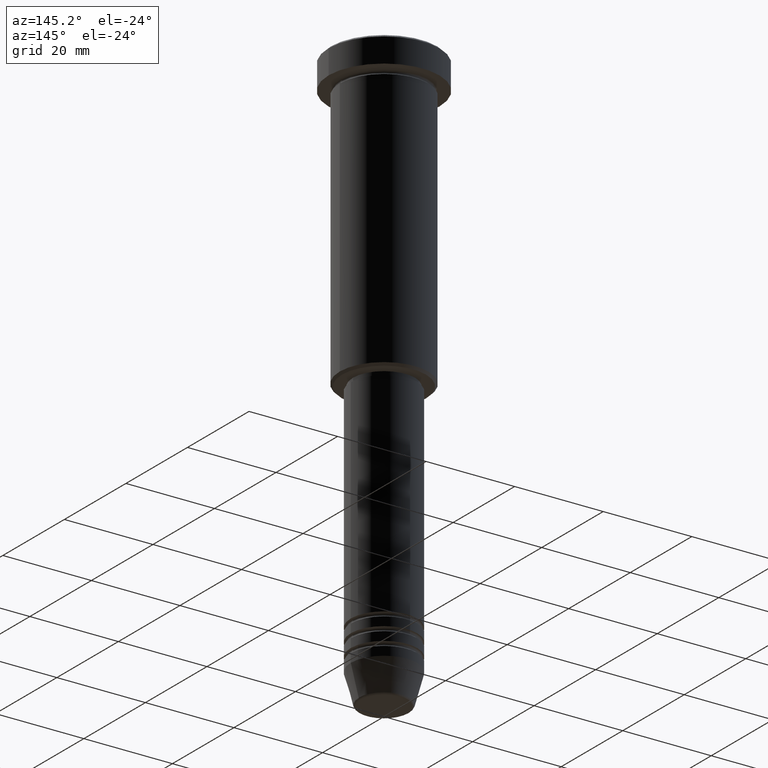
[diagram: clean part render]
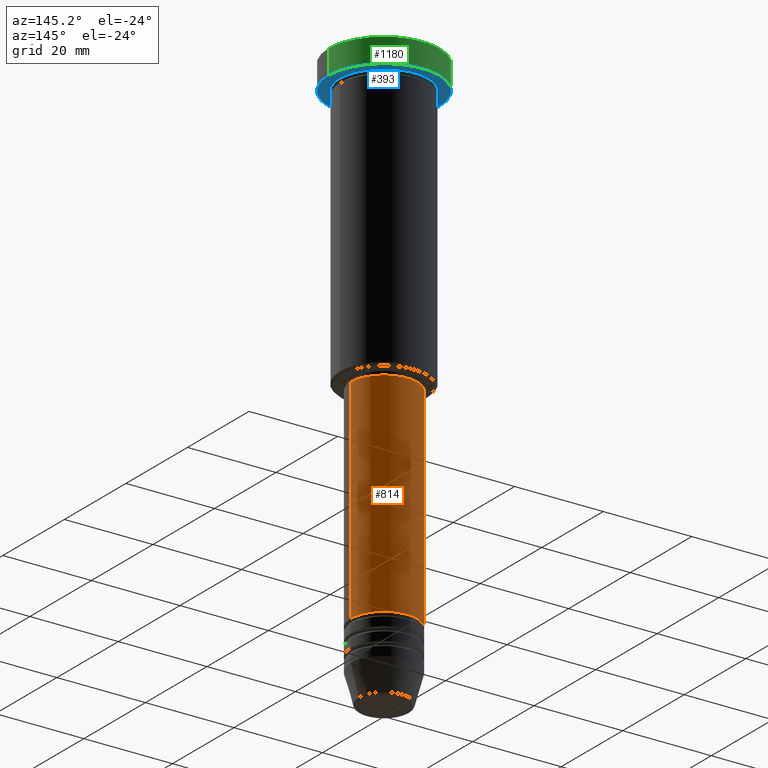
[diagram: same view with three faces highlighted in distinct colors, each labeled with its STEP entity id]
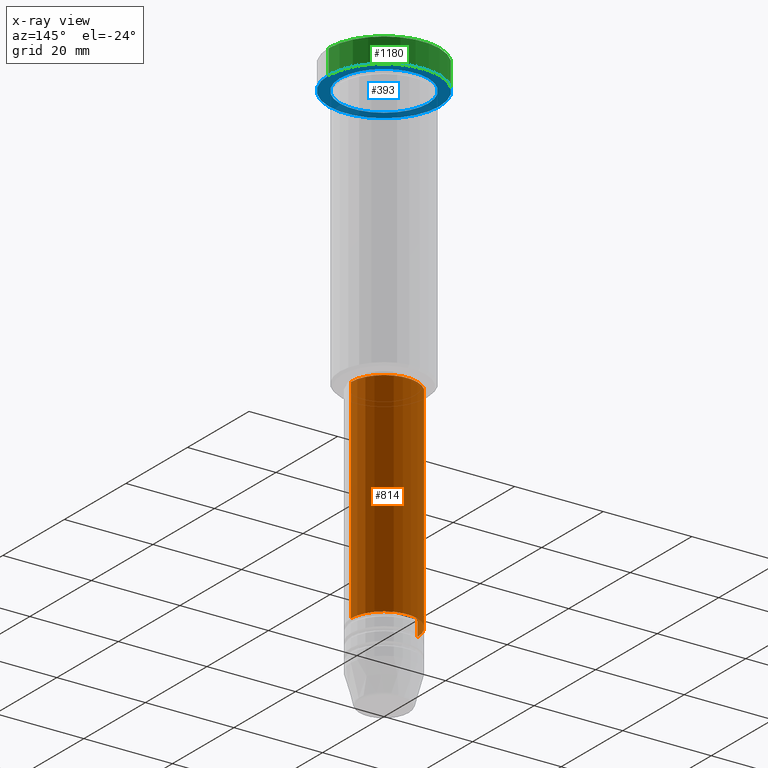
[diagram: x-ray of the same camera — body ghosted, the three highlighted faces saturated]
A machine part, auxiliary view with three faces highlighted in distinct colors.
The next image is the same camera in x-ray (body ghosted, the three faces saturated) — at least one of them is partly hidden behind the body in this view.
Their STEP definitions:

[orange] entity #814 — the highlighted cylindrical surface (partial cylindrical patch) has radius 7.5 mm, axis along (-0, -0, 1).
#116 = VECTOR ( 'NONE', #376, 1000.000000000000000 ) ;
#133 = CYLINDRICAL_SURFACE ( 'NONE', #668, 7.500000000000000000 ) ;
#141 = DIRECTION ( 'NONE',  ( -0.000000000000000000, -0.000000000000000000, 1.000000000000000000 ) ) ;
#175 = AXIS2_PLACEMENT_3D ( 'NONE', #1156, #344, #855 ) ;
#198 = VERTEX_POINT ( 'NONE', #401 ) ;
#224 = CARTESIAN_POINT ( 'NONE',  ( -7.500000000000000000, 9.184850993605147944E-16, 0.000000000000000000 ) ) ;
#236 = EDGE_CURVE ( 'NONE', #1010, #967, #867, .T. ) ;
#296 = CARTESIAN_POINT ( 'NONE',  ( 0.000000000000000000, 0.000000000000000000, 0.000000000000000000 ) ) ;
#310 = FACE_OUTER_BOUND ( 'NONE', #574, .T. ) ;
#316 = DIRECTION ( 'NONE',  ( -0.000000000000000000, -0.000000000000000000, 1.000000000000000000 ) ) ;
#333 = ORIENTED_EDGE ( 'NONE', *, *, #721, .F. ) ;
#344 = DIRECTION ( 'NONE',  ( -0.000000000000000000, -0.000000000000000000, 1.000000000000000000 ) ) ;
#359 = CARTESIAN_POINT ( 'NONE',  ( 7.500000000000000000, 0.000000000000000000, 0.000000000000000000 ) ) ;
#376 = DIRECTION ( 'NONE',  ( -0.000000000000000000, -0.000000000000000000, 1.000000000000000000 ) ) ;
#401 = CARTESIAN_POINT ( 'NONE',  ( 7.500000000000000000, 0.000000000000000000, -67.00000000000000000 ) ) ;
#435 = ORIENTED_EDGE ( 'NONE', *, *, #1014, .F. ) ;
#471 = AXIS2_PLACEMENT_3D ( 'NONE', #678, #571, #754 ) ;
#499 = LINE ( 'NONE', #224, #859 ) ;
#571 = DIRECTION ( 'NONE',  ( -0.000000000000000000, -0.000000000000000000, 1.000000000000000000 ) ) ;
#574 = EDGE_LOOP ( 'NONE', ( #799, #922, #333, #435 ) ) ;
#594 = VERTEX_POINT ( 'NONE', #1083 ) ;
#668 = AXIS2_PLACEMENT_3D ( 'NONE', #296, #316, #841 ) ;
#677 = CIRCLE ( 'NONE', #471, 7.500000000000000000 ) ;
#678 = CARTESIAN_POINT ( 'NONE',  ( 0.000000000000000000, 0.000000000000000000, -67.00000000000000000 ) ) ;
#721 = EDGE_CURVE ( 'NONE', #198, #594, #677, .T. ) ;
#731 = CARTESIAN_POINT ( 'NONE',  ( -7.500000000000000000, 9.184850993605147944E-16, -114.9999999999999574 ) ) ;
#754 = DIRECTION ( 'NONE',  ( 1.000000000000000000, 0.000000000000000000, 0.000000000000000000 ) ) ;
#799 = ORIENTED_EDGE ( 'NONE', *, *, #236, .T. ) ;
#814 = ADVANCED_FACE ( 'NONE', ( #310 ), #133, .T. ) ;
#838 = CARTESIAN_POINT ( 'NONE',  ( 7.500000000000000000, 0.000000000000000000, -114.9999999999999574 ) ) ;
#841 = DIRECTION ( 'NONE',  ( 1.000000000000000000, 0.000000000000000000, 0.000000000000000000 ) ) ;
#855 = DIRECTION ( 'NONE',  ( 1.000000000000000000, 0.000000000000000000, 0.000000000000000000 ) ) ;
#859 = VECTOR ( 'NONE', #141, 1000.000000000000000 ) ;
#867 = CIRCLE ( 'NONE', #175, 7.500000000000000000 ) ;
#922 = ORIENTED_EDGE ( 'NONE', *, *, #1175, .T. ) ;
#933 = LINE ( 'NONE', #359, #116 ) ;
#967 = VERTEX_POINT ( 'NONE', #731 ) ;
#1010 = VERTEX_POINT ( 'NONE', #838 ) ;
#1014 = EDGE_CURVE ( 'NONE', #1010, #198, #933, .T. ) ;
#1083 = CARTESIAN_POINT ( 'NONE',  ( -7.500000000000000000, 9.184850993605147944E-16, -67.00000000000000000 ) ) ;
#1156 = CARTESIAN_POINT ( 'NONE',  ( 0.000000000000000000, 0.000000000000000000, -114.9999999999999574 ) ) ;
#1175 = EDGE_CURVE ( 'NONE', #967, #594, #499, .T. ) ;

[blue] entity #393 — the highlighted planar face has unit normal (0, 0, -1).
#28 = ORIENTED_EDGE ( 'NONE', *, *, #85, .T. ) ;
#63 = CIRCLE ( 'NONE', #732, 12.50000000000000000 ) ;
#72 = VERTEX_POINT ( 'NONE', #911 ) ;
#77 = EDGE_CURVE ( 'NONE', #72, #1051, #63, .T. ) ;
#85 = EDGE_CURVE ( 'NONE', #214, #613, #232, .T. ) ;
#90 = DIRECTION ( 'NONE',  ( -0.000000000000000000, -0.000000000000000000, 1.000000000000000000 ) ) ;
#98 = EDGE_CURVE ( 'NONE', #1051, #72, #272, .T. ) ;
#104 = DIRECTION ( 'NONE',  ( -1.000000000000000000, 0.000000000000000000, 0.000000000000000000 ) ) ;
#155 = ORIENTED_EDGE ( 'NONE', *, *, #98, .F. ) ;
#214 = VERTEX_POINT ( 'NONE', #769 ) ;
#232 = CIRCLE ( 'NONE', #830, 10.00000000000000000 ) ;
#272 = CIRCLE ( 'NONE', #945, 12.50000000000000000 ) ;
#349 = DIRECTION ( 'NONE',  ( -0.000000000000000000, -0.000000000000000000, 1.000000000000000000 ) ) ;
#367 = CARTESIAN_POINT ( 'NONE',  ( 0.000000000000000000, 12.50000000000000000, -5.999999999999996447 ) ) ;
#393 = ADVANCED_FACE ( 'NONE', ( #1183, #940 ), #483, .T. ) ;
#483 = PLANE ( 'NONE',  #675 ) ;
#508 = ORIENTED_EDGE ( 'NONE', *, *, #641, .T. ) ;
#543 = CARTESIAN_POINT ( 'NONE',  ( 0.000000000000000000, 0.000000000000000000, -5.999999999999996447 ) ) ;
#551 = CARTESIAN_POINT ( 'NONE',  ( -12.50000000000000000, 1.530808498934191521E-15, -5.999999999999996447 ) ) ;
#565 = EDGE_LOOP ( 'NONE', ( #28, #508 ) ) ;
#613 = VERTEX_POINT ( 'NONE', #1169 ) ;
#619 = AXIS2_PLACEMENT_3D ( 'NONE', #837, #991, #104 ) ;
#621 = CARTESIAN_POINT ( 'NONE',  ( 0.000000000000000000, 0.000000000000000000, -5.999999999999996447 ) ) ;
#641 = EDGE_CURVE ( 'NONE', #613, #214, #1013, .T. ) ;
#675 = AXIS2_PLACEMENT_3D ( 'NONE', #367, #734, #1092 ) ;
#680 = ORIENTED_EDGE ( 'NONE', *, *, #77, .F. ) ;
#732 = AXIS2_PLACEMENT_3D ( 'NONE', #543, #90, #1162 ) ;
#734 = DIRECTION ( 'NONE',  ( 0.000000000000000000, 0.000000000000000000, -1.000000000000000000 ) ) ;
#769 = CARTESIAN_POINT ( 'NONE',  ( -10.00000000000000000, 0.000000000000000000, -5.999999999999996447 ) ) ;
#804 = EDGE_LOOP ( 'NONE', ( #680, #155 ) ) ;
#823 = DIRECTION ( 'NONE',  ( -0.000000000000000000, -0.000000000000000000, 1.000000000000000000 ) ) ;
#830 = AXIS2_PLACEMENT_3D ( 'NONE', #621, #823, #901 ) ;
#837 = CARTESIAN_POINT ( 'NONE',  ( 0.000000000000000000, 0.000000000000000000, -5.999999999999996447 ) ) ;
#901 = DIRECTION ( 'NONE',  ( -1.000000000000000000, 0.000000000000000000, 0.000000000000000000 ) ) ;
#911 = CARTESIAN_POINT ( 'NONE',  ( 12.50000000000000000, 0.000000000000000000, -5.999999999999996447 ) ) ;
#940 = FACE_OUTER_BOUND ( 'NONE', #804, .T. ) ;
#945 = AXIS2_PLACEMENT_3D ( 'NONE', #1001, #349, #1075 ) ;
#991 = DIRECTION ( 'NONE',  ( -0.000000000000000000, -0.000000000000000000, 1.000000000000000000 ) ) ;
#1001 = CARTESIAN_POINT ( 'NONE',  ( 0.000000000000000000, 0.000000000000000000, -5.999999999999996447 ) ) ;
#1013 = CIRCLE ( 'NONE', #619, 10.00000000000000000 ) ;
#1051 = VERTEX_POINT ( 'NONE', #551 ) ;
#1075 = DIRECTION ( 'NONE',  ( 1.000000000000000000, 0.000000000000000000, 0.000000000000000000 ) ) ;
#1092 = DIRECTION ( 'NONE',  ( -1.000000000000000000, 0.000000000000000000, -0.000000000000000000 ) ) ;
#1162 = DIRECTION ( 'NONE',  ( 1.000000000000000000, 0.000000000000000000, 0.000000000000000000 ) ) ;
#1169 = CARTESIAN_POINT ( 'NONE',  ( 10.00000000000000000, 1.224646799147353256E-15, -5.999999999999996447 ) ) ;
#1183 = FACE_BOUND ( 'NONE', #565, .T. ) ;

[green] entity #1180 — the highlighted cylindrical surface (partial cylindrical patch) has radius 12.5 mm, axis along (-0, -0, 1).
#63 = CIRCLE ( 'NONE', #732, 12.50000000000000000 ) ;
#72 = VERTEX_POINT ( 'NONE', #911 ) ;
#77 = EDGE_CURVE ( 'NONE', #72, #1051, #63, .T. ) ;
#79 = LINE ( 'NONE', #1127, #430 ) ;
#90 = DIRECTION ( 'NONE',  ( -0.000000000000000000, -0.000000000000000000, 1.000000000000000000 ) ) ;
#114 = EDGE_CURVE ( 'NONE', #72, #306, #79, .T. ) ;
#121 = EDGE_CURVE ( 'NONE', #1051, #579, #674, .T. ) ;
#137 = DIRECTION ( 'NONE',  ( -0.000000000000000000, -0.000000000000000000, 1.000000000000000000 ) ) ;
#186 = CARTESIAN_POINT ( 'NONE',  ( -12.50000000000000000, 1.530808498934191521E-15, -0.4999999999999917843 ) ) ;
#234 = EDGE_CURVE ( 'NONE', #579, #306, #768, .T. ) ;
#246 = DIRECTION ( 'NONE',  ( 1.000000000000000000, 0.000000000000000000, 0.000000000000000000 ) ) ;
#299 = ORIENTED_EDGE ( 'NONE', *, *, #114, .F. ) ;
#306 = VERTEX_POINT ( 'NONE', #744 ) ;
#382 = DIRECTION ( 'NONE',  ( -0.000000000000000000, -0.000000000000000000, 1.000000000000000000 ) ) ;
#415 = ORIENTED_EDGE ( 'NONE', *, *, #234, .T. ) ;
#430 = VECTOR ( 'NONE', #137, 1000.000000000000000 ) ;
#528 = DIRECTION ( 'NONE',  ( 0.000000000000000000, 0.000000000000000000, -1.000000000000000000 ) ) ;
#543 = CARTESIAN_POINT ( 'NONE',  ( 0.000000000000000000, 0.000000000000000000, -5.999999999999996447 ) ) ;
#551 = CARTESIAN_POINT ( 'NONE',  ( -12.50000000000000000, 1.530808498934191521E-15, -5.999999999999996447 ) ) ;
#561 = AXIS2_PLACEMENT_3D ( 'NONE', #704, #528, #246 ) ;
#572 = CYLINDRICAL_SURFACE ( 'NONE', #1182, 12.50000000000000000 ) ;
#579 = VERTEX_POINT ( 'NONE', #186 ) ;
#593 = FACE_OUTER_BOUND ( 'NONE', #1117, .T. ) ;
#674 = LINE ( 'NONE', #1040, #1103 ) ;
#704 = CARTESIAN_POINT ( 'NONE',  ( 0.000000000000000000, 0.000000000000000000, -0.4999999999999917843 ) ) ;
#732 = AXIS2_PLACEMENT_3D ( 'NONE', #543, #90, #1162 ) ;
#744 = CARTESIAN_POINT ( 'NONE',  ( 12.50000000000000000, 0.000000000000000000, -0.4999999999999917843 ) ) ;
#758 = ORIENTED_EDGE ( 'NONE', *, *, #77, .T. ) ;
#768 = CIRCLE ( 'NONE', #561, 12.50000000000000000 ) ;
#782 = ORIENTED_EDGE ( 'NONE', *, *, #121, .T. ) ;
#911 = CARTESIAN_POINT ( 'NONE',  ( 12.50000000000000000, 0.000000000000000000, -5.999999999999996447 ) ) ;
#960 = CARTESIAN_POINT ( 'NONE',  ( 0.000000000000000000, 0.000000000000000000, 0.000000000000000000 ) ) ;
#1040 = CARTESIAN_POINT ( 'NONE',  ( -12.50000000000000000, 1.530808498934191521E-15, 0.000000000000000000 ) ) ;
#1051 = VERTEX_POINT ( 'NONE', #551 ) ;
#1103 = VECTOR ( 'NONE', #1118, 1000.000000000000000 ) ;
#1105 = DIRECTION ( 'NONE',  ( 1.000000000000000000, 0.000000000000000000, 0.000000000000000000 ) ) ;
#1117 = EDGE_LOOP ( 'NONE', ( #758, #782, #415, #299 ) ) ;
#1118 = DIRECTION ( 'NONE',  ( -0.000000000000000000, -0.000000000000000000, 1.000000000000000000 ) ) ;
#1127 = CARTESIAN_POINT ( 'NONE',  ( 12.50000000000000000, 0.000000000000000000, 0.000000000000000000 ) ) ;
#1162 = DIRECTION ( 'NONE',  ( 1.000000000000000000, 0.000000000000000000, 0.000000000000000000 ) ) ;
#1180 = ADVANCED_FACE ( 'NONE', ( #593 ), #572, .T. ) ;
#1182 = AXIS2_PLACEMENT_3D ( 'NONE', #960, #382, #1105 ) ;